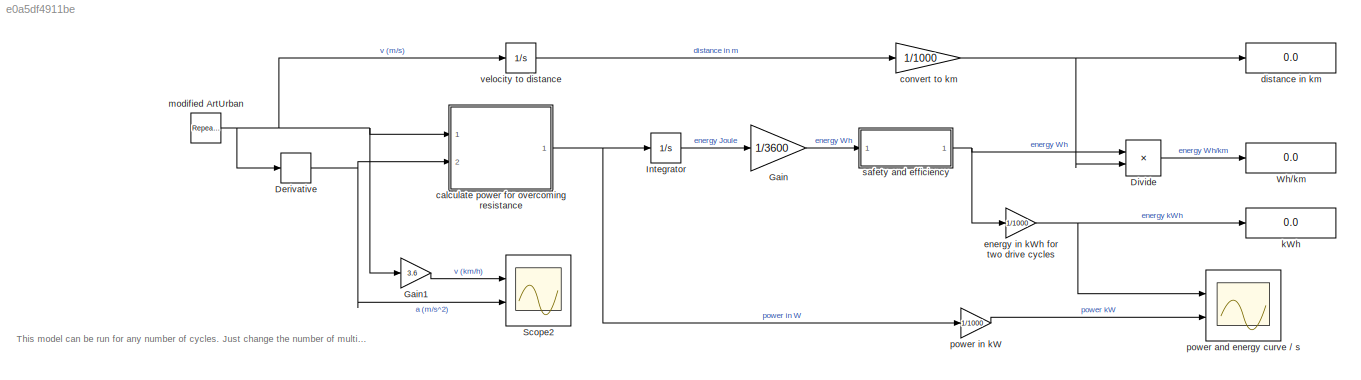
MODEL slx_e0a5df4911be
KIND model
CONFIG AbsTol = auto
CONFIG EnableMultiTasking = off
CONFIG FixedStep = 1
CONFIG MaxStep = auto
CONFIG MinStep = auto
CONFIG RelTol = 1e-3
CONFIG SampleTimeConstraint = Unconstrained
CONFIG SolverName = FixedStepAuto
CONFIG StartTime = 0.0
CONFIG StopTime = 1231
BLOCK [Derivative] Derivative
BLOCK [Product] Divide
  Inputs = */
  Ports = [2, 1]
BLOCK [Gain] Gain
  Gain = 1/3600
BLOCK [Gain] Gain1
  Gain = 3.6
BLOCK [Integrator] Integrator
  Ports = [1, 1]
BLOCK [Scope] Scope2
  Floating = off
  NumInputPorts = 2
  Ports = [2]
  ScopeSpecificationString = Simulink.scopes.TimeScopeBlockCfg('CurrentConfiguration', extmgr.ConfigurationSet(extmgr.Configuration('Core','General UI',true),extmgr.Configuration('Core','Source UI',true),extmgr.Configuration('Sources','WiredSimulink',true,'DataLoggingVariableName','ScopeData1'),extmgr.Configuration('Visuals','Time Domain',true,'SerializedDisplays',{struct('MinYLimReal','-7.308','MaxYLimReal','65.772','YLabelR...<+2060ch>
BLOCK [Display] Wh//km
  Decimation = 1
  Ports = [1]
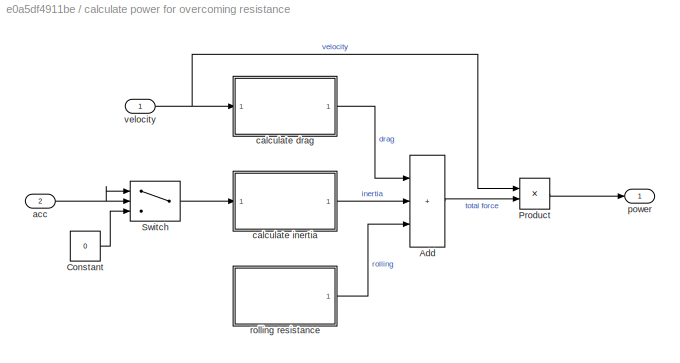
BLOCK [SubSystem] calculate power for overcoming resistance
  Ports = [2, 1]
  RequestExecContextInheritance = off
BLOCK [Sum] calculate power for overcoming resistance/Add
  IconShape = rectangular
  Inputs = +++
  Ports = [3, 1]
BLOCK [Constant] calculate power for overcoming resistance/Constant
  Value = 0
BLOCK [Product] calculate power for overcoming resistance/Product
  Ports = [2, 1]
BLOCK [Switch] calculate power for overcoming resistance/Switch
  Criteria = u2 > Threshold
  InputSameDT = off
  SaturateOnIntegerOverflow = off
BLOCK [Inport] calculate power for overcoming resistance/acc
  Port = 2
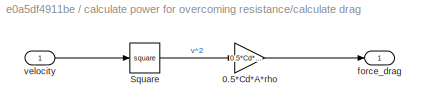
BLOCK [SubSystem] calculate power for overcoming resistance/calculate drag
  Ports = [1, 1]
  RequestExecContextInheritance = off
BLOCK [Gain] calculate power for overcoming resistance/calculate drag/0.5*Cd*A*rho
  Gain = 0.5*Cd*A*rho
BLOCK [Math] calculate power for overcoming resistance/calculate drag/Square
  Operator = square
  Ports = [1, 1]
BLOCK [Outport] calculate power for overcoming resistance/calculate drag/force_drag
BLOCK [Inport] calculate power for overcoming resistance/calculate drag/velocity
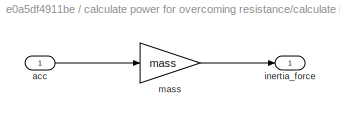
BLOCK [SubSystem] calculate power for overcoming resistance/calculate inertia
  Ports = [1, 1]
  RequestExecContextInheritance = off
BLOCK [Inport] calculate power for overcoming resistance/calculate inertia/acc
BLOCK [Outport] calculate power for overcoming resistance/calculate inertia/inertia_force
BLOCK [Gain] calculate power for overcoming resistance/calculate inertia/mass
  Gain = mass
BLOCK [Outport] calculate power for overcoming resistance/power
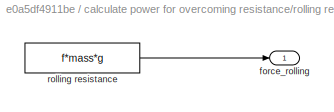
BLOCK [SubSystem] calculate power for overcoming resistance/rolling resistance
  Ports = [0, 1]
  RequestExecContextInheritance = off
BLOCK [Outport] calculate power for overcoming resistance/rolling resistance/force_rolling
BLOCK [Constant] calculate power for overcoming resistance/rolling resistance/rolling resistance
  Value = f*mass*g
BLOCK [Inport] calculate power for overcoming resistance/velocity
BLOCK [Gain] convert to km
  Gain = 1/1000
BLOCK [Display] distance in km
  Decimation = 1
  Ports = [1]
BLOCK [Gain] energy in kWh for two drive cycles
  Gain = 1/1000
BLOCK [Display] kWh
  Decimation = 1
  Ports = [1]
BLOCK [Reference] modified ArtUrban  REF=simulink/Sources/Repeating
Sequence
  Ports = [0, 1]
  SourceBlock = simulink/Sources/Repeating\nSequence
  SourceProductBaseCode = SL
  SourceType = Repeating table
BLOCK [Scope] power and energy curve // s
  Floating = off
  NumInputPorts = 2
  Ports = [2]
  ScopeSpecificationString = Simulink.scopes.TimeScopeBlockCfg('CurrentConfiguration', extmgr.ConfigurationSet(extmgr.Configuration('Core','General UI',true),extmgr.Configuration('Core','Source UI',true),extmgr.Configuration('Sources','WiredSimulink',true),extmgr.Configuration('Visuals','Time Domain',true,'SerializedDisplays',{struct('MinYLimReal','-0.16217','MaxYLimReal','1.45951','YLabelReal','','MinYLimMag','0.00000','MaxY...<+1998ch>
BLOCK [Gain] power in kW
  Gain = 1/1000
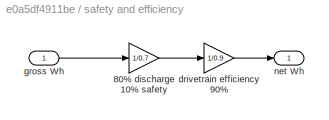
BLOCK [SubSystem] safety and efficiency
  Ports = [1, 1]
  RequestExecContextInheritance = off
BLOCK [Gain] safety and efficiency/80% discharge 10% safety
  Gain = 1/0.7
BLOCK [Gain] safety and efficiency/drivetrain efficiency 90%
  Gain = 1/0.9
BLOCK [Inport] safety and efficiency/gross Wh
BLOCK [Outport] safety and efficiency/net Wh
BLOCK [Integrator] velocity to distance
  Ports = [1, 1]
ANNOTATION (root): This model can be run for any number of cycles. Just change the number of multipled by in the stop time. Cycle length = 1231 s
NET Derivative:1 -> Scope2:2, calculate power for overcoming resistance:2
LINE Divide:1 -> Wh//km:1
LINE Gain1:1 -> Scope2:1
LINE Gain:1 -> safety and efficiency:1
LINE Integrator:1 -> Gain:1
LINE calculate power for overcoming resistance/Add:1 -> calculate power for overcoming resistance/Product:2
LINE calculate power for overcoming resistance/Constant:1 -> calculate power for overcoming resistance/Switch:3
LINE calculate power for overcoming resistance/Product:1 -> calculate power for overcoming resistance/power:1
LINE calculate power for overcoming resistance/Switch:1 -> calculate power for overcoming resistance/calculate inertia:1
NET calculate power for overcoming resistance/acc:1 -> calculate power for overcoming resistance/Switch:1, calculate power for overcoming resistance/Switch:2
LINE calculate power for overcoming resistance/calculate drag/0.5*Cd*A*rho:1 -> calculate power for overcoming resistance/calculate drag/force_drag:1
LINE calculate power for overcoming resistance/calculate drag/Square:1 -> calculate power for overcoming resistance/calculate drag/0.5*Cd*A*rho:1
LINE calculate power for overcoming resistance/calculate drag/velocity:1 -> calculate power for overcoming resistance/calculate drag/Square:1
LINE calculate power for overcoming resistance/calculate drag:1 -> calculate power for overcoming resistance/Add:1
LINE calculate power for overcoming resistance/calculate inertia/acc:1 -> calculate power for overcoming resistance/calculate inertia/mass:1
LINE calculate power for overcoming resistance/calculate inertia/mass:1 -> calculate power for overcoming resistance/calculate inertia/inertia_force:1
LINE calculate power for overcoming resistance/calculate inertia:1 -> calculate power for overcoming resistance/Add:2
LINE calculate power for overcoming resistance/rolling resistance/rolling resistance:1 -> calculate power for overcoming resistance/rolling resistance/force_rolling:1
LINE calculate power for overcoming resistance/rolling resistance:1 -> calculate power for overcoming resistance/Add:3
NET calculate power for overcoming resistance/velocity:1 -> calculate power for overcoming resistance/Product:1, calculate power for overcoming resistance/calculate drag:1
NET calculate power for overcoming resistance:1 -> Integrator:1, power in kW:1
NET convert to km:1 -> Divide:2, distance in km:1
NET energy in kWh for two drive cycles:1 -> kWh:1, power and energy curve // s:1
NET modified ArtUrban:1 -> Derivative:1, Gain1:1, calculate power for overcoming resistance:1, velocity to distance:1
LINE power in kW:1 -> power and energy curve // s:2
LINE safety and efficiency/80% discharge 10% safety:1 -> safety and efficiency/drivetrain efficiency 90%:1
LINE safety and efficiency/drivetrain efficiency 90%:1 -> safety and efficiency/net Wh:1
LINE safety and efficiency/gross Wh:1 -> safety and efficiency/80% discharge 10% safety:1
NET safety and efficiency:1 -> Divide:1, energy in kWh for two drive cycles:1
LINE velocity to distance:1 -> convert to km:1
note: NET lines group one-source signal fan-out (src -> all destinations, sorted); 1:1 wires keep LINE
